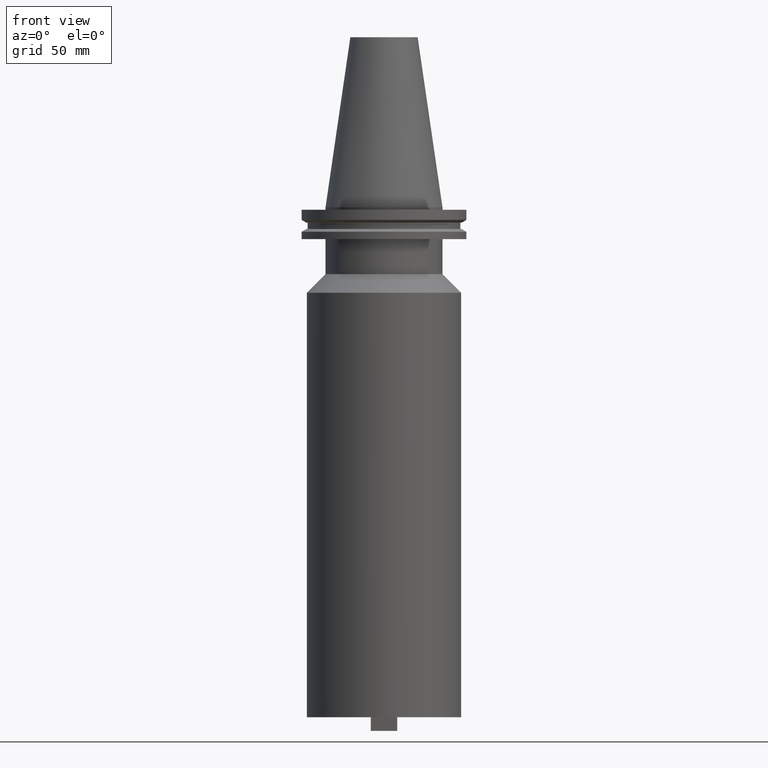
[diagram: clean part render]
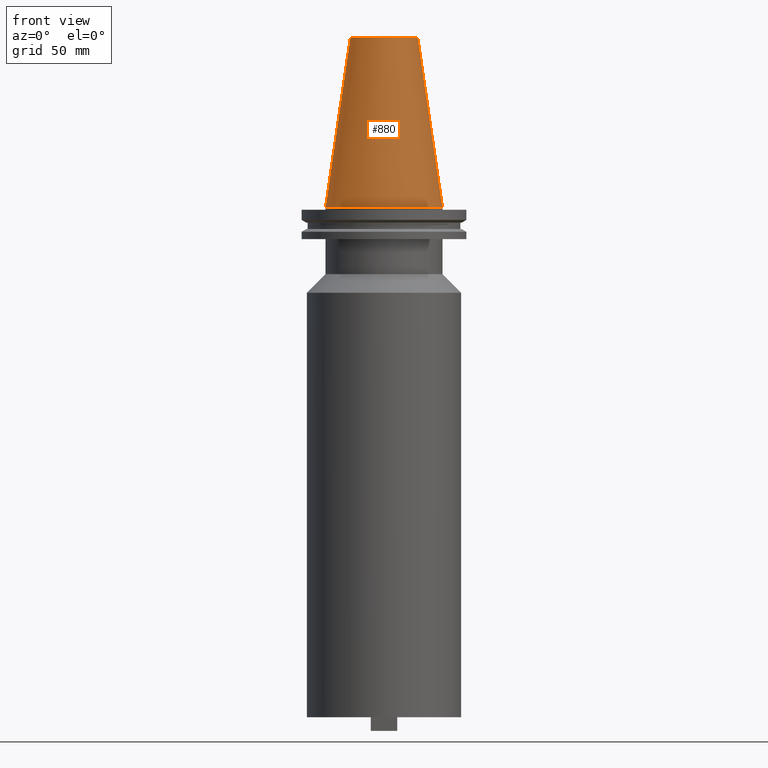
[diagram: same view with one face highlighted and labeled with its STEP entity id]
A machine part, front view. The second image highlights one B-rep face of the part: STEP entity #880.
In plain terms, the highlighted conical surface has half-angle 8.297 deg.
Its self-contained STEP definition (entity closure, byte-faithful):
#2 = CARTESIAN_POINT ( 'NONE',  ( 34.92499999999999005, 4.277078946022130098E-15, 0.000000000000000000 ) ) ;
#174 = DIRECTION ( 'NONE',  ( -1.000000000000000000, 0.000000000000000000, 0.000000000000000000 ) ) ;
#188 = DIRECTION ( 'NONE',  ( 0.000000000000000000, 0.000000000000000000, -1.000000000000000000 ) ) ;
#198 = CARTESIAN_POINT ( 'NONE',  ( 0.000000000000000000, 0.000000000000000000, 0.000000000000000000 ) ) ;
#212 = CARTESIAN_POINT ( 'NONE',  ( -34.92499999999999005, 0.000000000000000000, 0.000000000000000000 ) ) ;
#218 = VERTEX_POINT ( 'NONE', #460 ) ;
#278 = VERTEX_POINT ( 'NONE', #930 ) ;
#306 = CONICAL_SURFACE ( 'NONE', #871, 34.92499999999999005, 0.1448138465474119452 ) ;
#307 = DIRECTION ( 'NONE',  ( -0.1443082272672999988, 0.000000000000000000, -0.9895327864921755756 ) ) ;
#319 = AXIS2_PLACEMENT_3D ( 'NONE', #415, #915, #1086 ) ;
#415 = CARTESIAN_POINT ( 'NONE',  ( 0.000000000000000000, 0.000000000000000000, 101.5999999999999801 ) ) ;
#419 = DIRECTION ( 'NONE',  ( 0.1443082272672999988, 1.767266086135277066E-17, -0.9895327864921755756 ) ) ;
#452 = CARTESIAN_POINT ( 'NONE',  ( -34.92499999999999005, 0.000000000000000000, 0.000000000000000000 ) ) ;
#460 = CARTESIAN_POINT ( 'NONE',  ( 20.10819343178871321, 3.369811209154858606E-15, 101.5999999999999801 ) ) ;
#481 = CIRCLE ( 'NONE', #319, 20.10819343178871321 ) ;
#506 = ORIENTED_EDGE ( 'NONE', *, *, #1000, .T. ) ;
#531 = EDGE_CURVE ( 'NONE', #278, #888, #1066, .T. ) ;
#536 = CARTESIAN_POINT ( 'NONE',  ( 0.000000000000000000, 0.000000000000000000, 0.000000000000000000 ) ) ;
#544 = EDGE_LOOP ( 'NONE', ( #769, #964, #644, #506 ) ) ;
#584 = AXIS2_PLACEMENT_3D ( 'NONE', #198, #633, #887 ) ;
#588 = EDGE_CURVE ( 'NONE', #278, #218, #481, .T. ) ;
#633 = DIRECTION ( 'NONE',  ( -0.000000000000000000, -0.000000000000000000, 1.000000000000000000 ) ) ;
#644 = ORIENTED_EDGE ( 'NONE', *, *, #531, .T. ) ;
#655 = EDGE_CURVE ( 'NONE', #218, #897, #832, .T. ) ;
#725 = VECTOR ( 'NONE', #307, 999.9999999999998863 ) ;
#768 = FACE_OUTER_BOUND ( 'NONE', #544, .T. ) ;
#769 = ORIENTED_EDGE ( 'NONE', *, *, #655, .F. ) ;
#831 = VECTOR ( 'NONE', #419, 999.9999999999998863 ) ;
#832 = LINE ( 'NONE', #1012, #831 ) ;
#871 = AXIS2_PLACEMENT_3D ( 'NONE', #536, #188, #174 ) ;
#880 = ADVANCED_FACE ( 'NONE', ( #768 ), #306, .T. ) ;
#887 = DIRECTION ( 'NONE',  ( 1.000000000000000000, 0.000000000000000000, 0.000000000000000000 ) ) ;
#888 = VERTEX_POINT ( 'NONE', #452 ) ;
#897 = VERTEX_POINT ( 'NONE', #2 ) ;
#915 = DIRECTION ( 'NONE',  ( -0.000000000000000000, -0.000000000000000000, 1.000000000000000000 ) ) ;
#930 = CARTESIAN_POINT ( 'NONE',  ( -20.10819343178871321, 0.000000000000000000, 101.5999999999999801 ) ) ;
#948 = CIRCLE ( 'NONE', #584, 34.92499999999999005 ) ;
#964 = ORIENTED_EDGE ( 'NONE', *, *, #588, .F. ) ;
#1000 = EDGE_CURVE ( 'NONE', #888, #897, #948, .T. ) ;
#1012 = CARTESIAN_POINT ( 'NONE',  ( 34.92499999999999005, 4.277078946022130098E-15, 0.000000000000000000 ) ) ;
#1066 = LINE ( 'NONE', #212, #725 ) ;
#1086 = DIRECTION ( 'NONE',  ( 1.000000000000000000, 0.000000000000000000, 0.000000000000000000 ) ) ;